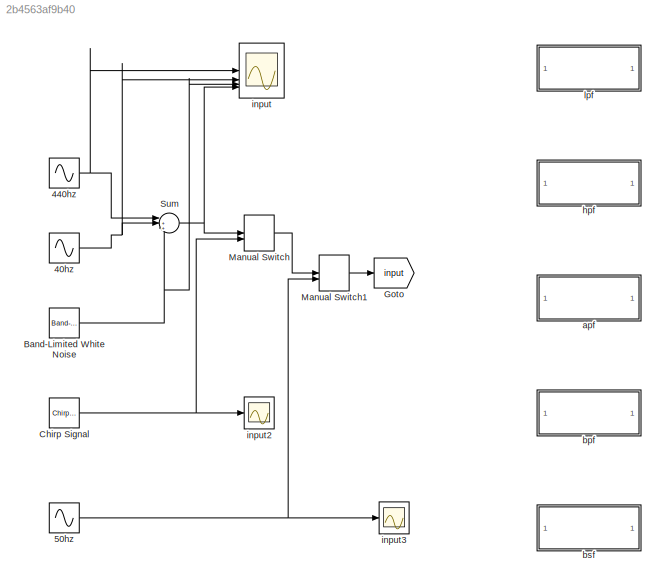
MODEL slx_2b4563af9b40
KIND model
CONFIG AbsTol = auto
CONFIG EnableMultiTasking = off
CONFIG FixedStep = auto
CONFIG MaxStep = auto
CONFIG MinStep = auto
CONFIG RelTol = 1e-3
CONFIG SampleTimeConstraint = Unconstrained
CONFIG SolverName = VariableStepAuto
CONFIG StartTime = 0.0
CONFIG StopTime = 0.2
BLOCK [Sin] 40hz
  Frequency = 2*pi*40
  SampleTime = 0
BLOCK [Sin] 440hz
  Frequency = 2*pi*440
  SampleTime = 0
BLOCK [Sin] 50hz
  Frequency = 2*pi*100
  SampleTime = 0
BLOCK [Reference] Band-Limited White Noise  REF=simulink/Sources/Band-Limited
White Noise
  SourceBlock = simulink/Sources/Band-Limited\nWhite Noise
  SourceType = Band-Limited White Noise.
BLOCK [Reference] Chirp Signal  REF=simulink/Sources/Chirp Signal
  SourceBlock = simulink/Sources/Chirp Signal
  SourceType = chirp
BLOCK [Goto] Goto
  GotoTag = input
  TagVisibility = global
BLOCK [ManualSwitch] Manual Switch
  CurrentSetting = 0
BLOCK [ManualSwitch] Manual Switch1
  CurrentSetting = 0
BLOCK [Sum] Sum
  Inputs = |+++
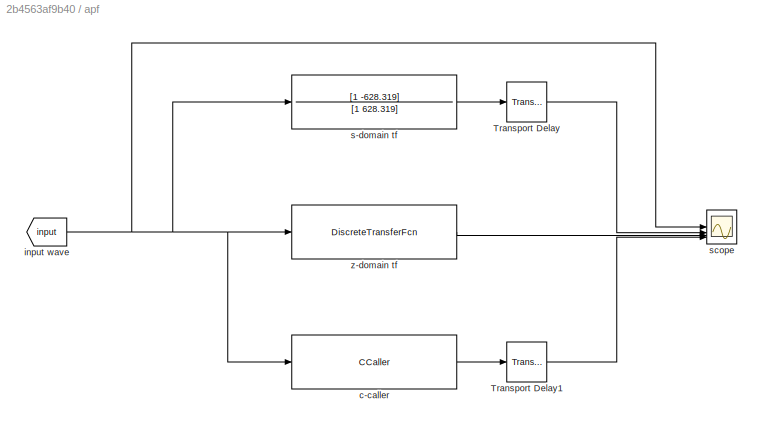
BLOCK [SubSystem] apf
BLOCK [TransportDelay] apf/Transport Delay
  DelayTime = 0.002
BLOCK [TransportDelay] apf/Transport Delay1
  DelayTime = 0.004
BLOCK [CCaller] apf/c-caller
  FunctionName = apf_step
  PortSpecificationStruct = %)30     .    N ,   8    (     @         %    "     (    !     0         %  0 "0    $    _    07)G3F%M90  4&]R=$YA;64 4V-O<&4     26YD97@     5'EP90      4VEZ90      27-';&]B86P   X    P    !@    @    $          4    (     0    ,    !         !   P!O=70 #@   #     &    "     0         !0    @    !     P    $         $  # &]U=  .    .     8    (    !          %    "     $    &     0         0    !@...<+882ch>  <repeated x5 — deduplicated; at blocks: c-caller>
  SampleTime = 0.0001
BLOCK [From] apf/input wave
  GotoTag = input
  TagVisibility = global
BLOCK [TransferFcn] apf/s-domain tf
  Denominator = [1 628.319]
  Numerator = [1 -628.319]
BLOCK [Scope] apf/scope
  ActiveDisplayYMaximum = 1.9867147971946055
  ActiveDisplayYMinimum = -3.2010108129554125
  DataLoggingVariableName = ScopeData3
  Floating = off
  GraphicalSettings = {"Style":{"BackgroundColor":[0.12941176470588237,0.12941176470588237,0.12941176470588237],"AxesColor":[0.07058823529411765,0.07058823529411765,0.07058823529411765],"LabelsColor":[0.8509803921568627,0.8509803921568627,0.8509803921568627],"PreserveColors":false,"Visible":[true,true,true,true],"LineStyle":["-","-","-","-"],"LineWidth":[1.5,1.5,1.5,1.5],"BarWidth":[0.9,0.9,0.9,0.9],"LineColor":["auto"...<+2370ch>  <repeated x4 — deduplicated; at blocks: scope>
  MultipleDisplayCache = [{"MaxYLimMag":1.25,"MaxYLimReal":1.9867147971946055,"MinYLimMag":0,"MinYLimReal":-3.2010108129554125,"PlotAsMagnitudePhase":false,"ShowGrid":true,"ShowLegend":true,"Title":"%<SignalLabel>","YLabel":""}]
  NumInputPorts = 4
  ScopeFrameLocation = window
  ShowLegend = on
  WasSavedAsWebScope = on
  WindowPosition = [11.000000,30.000000,1920.000000,1016.000000,]
BLOCK [DiscreteTransferFcn] apf/z-domain tf
  CloseFcn = dspblkCoreblockFVToolHelper(gcbh,'close');
  CopyFcn = dspblkCoreblockFVToolHelper(gcbh,'copy');
  DeleteFcn = dspblkCoreblockFVToolHelper(gcbh,'close');
  Denominator = [1 -0.93908194]
  InputPortMap = u0
  LoadFcn = dspblkCoreblockFVToolHelper(gcbh,'load');
  ModelCloseFcn = dspblkCoreblockFVToolHelper(gcbh,'close');
  Numerator = [0.93908194 -1]
  PostSaveFcn = dspblkCoreblockFVToolHelper(gcbh,'postsave');
  PreSaveFcn = dspblkCoreblockFVToolHelper(gcbh,'presave');
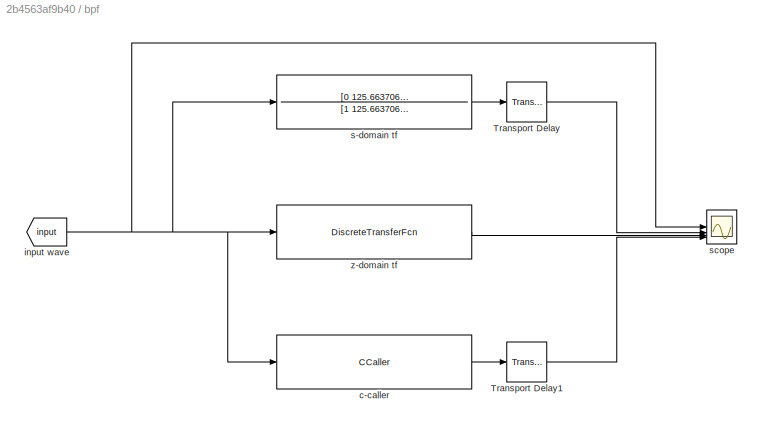
BLOCK [SubSystem] bpf
BLOCK [TransportDelay] bpf/Transport Delay
  DelayTime = 0.002
BLOCK [TransportDelay] bpf/Transport Delay1
  DelayTime = 0.004
BLOCK [CCaller] bpf/c-caller
  FunctionName = bpf_step
  SampleTime = 0.0001
BLOCK [From] bpf/input wave
  GotoTag = input
  TagVisibility = global
BLOCK [TransferFcn] bpf/s-domain tf
  Denominator = [1 125.6637061 394784.1760]
  Numerator = [0 125.6637061 0]
BLOCK [Scope] bpf/scope
  ActiveDisplayYMaximum = 1.9867147971946055
  ActiveDisplayYMinimum = -3.2010108129554125
  DataLoggingVariableName = ScopeData3
  Floating = off
  MultipleDisplayCache = [{"MaxYLimMag":1.25,"MaxYLimReal":1.9867147971946055,"MinYLimMag":0,"MinYLimReal":-3.2010108129554125,"PlotAsMagnitudePhase":false,"ShowGrid":true,"ShowLegend":true,"Title":"%<SignalLabel>","YLabel":""}]
  NumInputPorts = 4
  ScopeFrameLocation = window
  ShowLegend = on
  WasSavedAsWebScope = on
  WindowPosition = [11.000000,30.000000,1920.000000,1016.000000,]
BLOCK [DiscreteTransferFcn] bpf/z-domain tf
  CloseFcn = dspblkCoreblockFVToolHelper(gcbh,'close');
  CopyFcn = dspblkCoreblockFVToolHelper(gcbh,'copy');
  DeleteFcn = dspblkCoreblockFVToolHelper(gcbh,'close');
  Denominator = [1 -1.98360498 0.98752433]
  InputPortMap = u0
  LoadFcn = dspblkCoreblockFVToolHelper(gcbh,'load');
  ModelCloseFcn = dspblkCoreblockFVToolHelper(gcbh,'close');
  Numerator = [0.00623784 0 -0.00623784]
  PostSaveFcn = dspblkCoreblockFVToolHelper(gcbh,'postsave');
  PreSaveFcn = dspblkCoreblockFVToolHelper(gcbh,'presave');
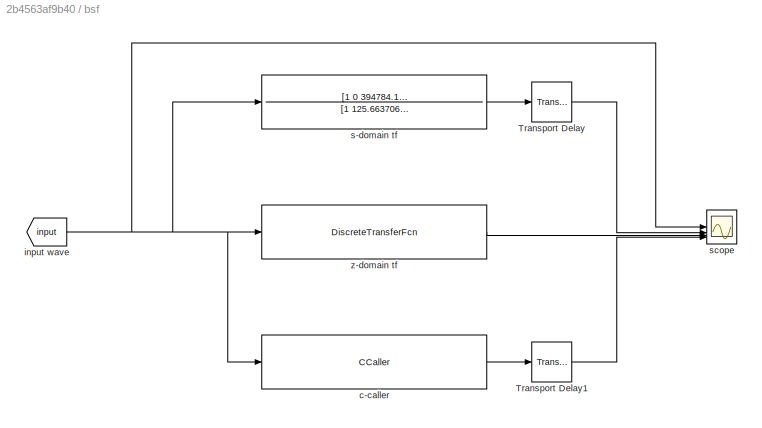
BLOCK [SubSystem] bsf
BLOCK [TransportDelay] bsf/Transport Delay
  DelayTime = 0.002
BLOCK [TransportDelay] bsf/Transport Delay1
  DelayTime = 0.004
BLOCK [CCaller] bsf/c-caller
  FunctionName = bsf_step
  SampleTime = 0.0001
BLOCK [From] bsf/input wave
  GotoTag = input
  TagVisibility = global
BLOCK [TransferFcn] bsf/s-domain tf
  Denominator = [1 125.6637061 394784.1760]
  Numerator = [1 0 394784.1760]
BLOCK [Scope] bsf/scope
  ActiveDisplayYMaximum = 1.9867147971946055
  ActiveDisplayYMinimum = -3.2010108129554125
  DataLoggingVariableName = ScopeData3
  Floating = off
  GraphicalSettings = {"Style":{"BackgroundColor":[0.12941176470588237,0.12941176470588237,0.12941176470588237],"AxesColor":[0.07058823529411765,0.07058823529411765,0.07058823529411765],"LabelsColor":[0.8509803921568627,0.8509803921568627,0.8509803921568627],"PreserveColors":false,"Visible":[true,true,true,true],"LineStyle":["-","-","-","-"],"LineWidth":[1.5,1.5,1.5,1.5],"BarWidth":[0.9,0.9,0.9,0.9],"LineColor":["auto"...<+2386ch>
  MultipleDisplayCache = [{"MaxYLimMag":1.25,"MaxYLimReal":1.9867147971946055,"MinYLimMag":0,"MinYLimReal":-3.2010108129554125,"PlotAsMagnitudePhase":false,"ShowGrid":true,"ShowLegend":true,"Title":"%<SignalLabel>","YLabel":"amplitud"}]
  NumInputPorts = 4
  ScopeFrameLocation = window
  ShowLegend = on
  ShowTimeAxisLabel = on
  WasSavedAsWebScope = on
  WindowPosition = [11.000000,30.000000,1920.000000,1016.000000,]
  YLabel = amplitud
BLOCK [DiscreteTransferFcn] bsf/z-domain tf
  CloseFcn = dspblkCoreblockFVToolHelper(gcbh,'close');
  CopyFcn = dspblkCoreblockFVToolHelper(gcbh,'copy');
  DeleteFcn = dspblkCoreblockFVToolHelper(gcbh,'close');
  Denominator = [1 -1.98360498 0.98752433]
  InputPortMap = u0
  LoadFcn = dspblkCoreblockFVToolHelper(gcbh,'load');
  ModelCloseFcn = dspblkCoreblockFVToolHelper(gcbh,'close');
  Numerator = [0.99376216 -1.98360498 0.99376216]
  PostSaveFcn = dspblkCoreblockFVToolHelper(gcbh,'postsave');
  PreSaveFcn = dspblkCoreblockFVToolHelper(gcbh,'presave');
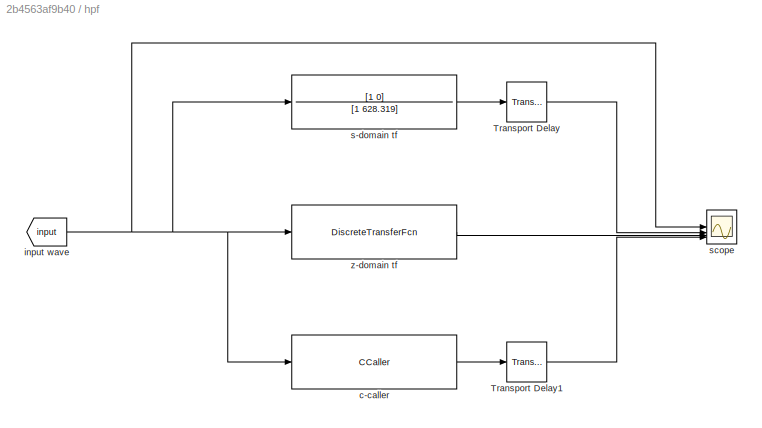
BLOCK [SubSystem] hpf
BLOCK [TransportDelay] hpf/Transport Delay
  DelayTime = 0.002
BLOCK [TransportDelay] hpf/Transport Delay1
  DelayTime = 0.004
BLOCK [CCaller] hpf/c-caller
  FunctionName = hpf_step
  SampleTime = 0.0001
BLOCK [From] hpf/input wave
  GotoTag = input
  TagVisibility = global
BLOCK [TransferFcn] hpf/s-domain tf
  Denominator = [1 628.319]
  Numerator = [1 0]
BLOCK [Scope] hpf/scope
  ActiveDisplayYMaximum = 1.9981075354731477
  ActiveDisplayYMinimum = -3.2474138199887865
  DataLoggingVariableName = ScopeData3
  Floating = off
  MultipleDisplayCache = [{"MaxYLimMag":1.25,"MaxYLimReal":1.9981075354731477,"MinYLimMag":0,"MinYLimReal":-3.2474138199887865,"PlotAsMagnitudePhase":false,"ShowGrid":true,"ShowLegend":true,"Title":"%<SignalLabel>","YLabel":""}]
  NumInputPorts = 4
  ScopeFrameLocation = window
  ShowLegend = on
  WasSavedAsWebScope = on
  WindowPosition = [11.000000,30.000000,1920.000000,1016.000000,]
BLOCK [DiscreteTransferFcn] hpf/z-domain tf
  CloseFcn = dspblkCoreblockFVToolHelper(gcbh,'close');
  CopyFcn = dspblkCoreblockFVToolHelper(gcbh,'copy');
  DeleteFcn = dspblkCoreblockFVToolHelper(gcbh,'close');
  Denominator = [1 -0.93908194]
  InputPortMap = u0
  LoadFcn = dspblkCoreblockFVToolHelper(gcbh,'load');
  ModelCloseFcn = dspblkCoreblockFVToolHelper(gcbh,'close');
  Numerator = [0.96954097 -0.96954097]
  PostSaveFcn = dspblkCoreblockFVToolHelper(gcbh,'postsave');
  PreSaveFcn = dspblkCoreblockFVToolHelper(gcbh,'presave');
BLOCK [Scope] input
  Floating = off
  GraphicalSettings = {"Style":{"BackgroundColor":[0.12941176470588237,0.12941176470588237,0.12941176470588237],"AxesColor":[0.07058823529411765,0.07058823529411765,0.07058823529411765],"LabelsColor":[0.8509803921568627,0.8509803921568627,0.8509803921568627],"PreserveColors":false,"Visible":[true,true,true,true,true,true,true],"LineStyle":["-","-","-","-","-","-","-"],"LineWidth":[1.5,1.5,1.5,1.5,1.5,1.5,1.5],"BarWidth...<+2485ch>
  NumInputPorts = 4
  ScopeFrameLocation = window
  WasSavedAsWebScope = on
  WindowPosition = [680.000000,441.000000,560.000000,420.000000,]
BLOCK [Scope] input2
  DataLoggingVariableName = ScopeData1
  Floating = off
  GraphicalSettings = {"GraphicalSettings":{"LegacySettings":true,"Style":{"Style":{"PlotType":"Auto"}}}}
  NumInputPorts = 1
  WasSavedAsWebScope = on
BLOCK [Scope] input3
  DataLoggingVariableName = ScopeData2
  Floating = off
  GraphicalSettings = {"GraphicalSettings":{"LegacySettings":true,"Style":{"Style":{"PlotType":"Auto"}}}}
  NumInputPorts = 1
  WasSavedAsWebScope = on
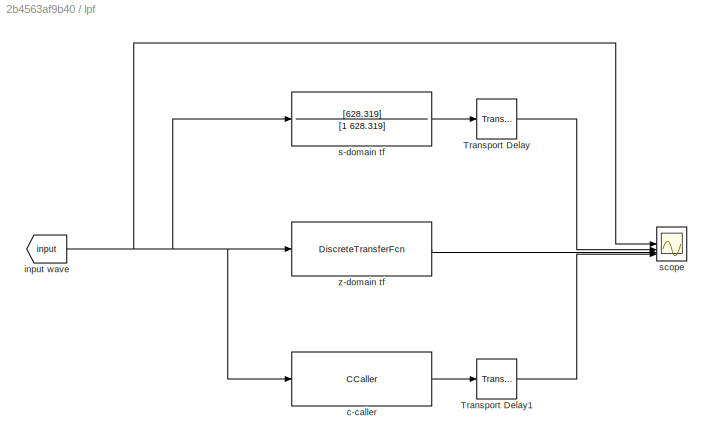
BLOCK [SubSystem] lpf
BLOCK [TransportDelay] lpf/Transport Delay
  DelayTime = 0.002
BLOCK [TransportDelay] lpf/Transport Delay1
  DelayTime = 0.004
BLOCK [CCaller] lpf/c-caller
  FunctionName = lpf_step
  SampleTime = 0.0001
BLOCK [From] lpf/input wave
  GotoTag = input
  TagVisibility = global
BLOCK [TransferFcn] lpf/s-domain tf
  Denominator = [1 628.319]
  Numerator = [628.319]
BLOCK [Scope] lpf/scope
  ActiveDisplayYMaximum = 1.1998156172727978
  ActiveDisplayYMinimum = -1.0370380681704505
  DataLoggingVariableName = ScopeData3
  Floating = off
  MultipleDisplayCache = [{"MaxYLimMag":1.25,"MaxYLimReal":1.1998156172727978,"MinYLimMag":0,"MinYLimReal":-1.0370380681704505,"PlotAsMagnitudePhase":false,"ShowGrid":true,"ShowLegend":true,"Title":"%<SignalLabel>","YLabel":""}]
  NumInputPorts = 4
  ScopeFrameLocation = window
  ShowLegend = on
  WasSavedAsWebScope = on
  WindowPosition = [11.000000,30.000000,1920.000000,1016.000000,]
BLOCK [DiscreteTransferFcn] lpf/z-domain tf
  CloseFcn = dspblkCoreblockFVToolHelper(gcbh,'close');
  CopyFcn = dspblkCoreblockFVToolHelper(gcbh,'copy');
  DeleteFcn = dspblkCoreblockFVToolHelper(gcbh,'close');
  Denominator = [1 -0.9390819]
  InputPortMap = u0
  LoadFcn = dspblkCoreblockFVToolHelper(gcbh,'load');
  ModelCloseFcn = dspblkCoreblockFVToolHelper(gcbh,'close');
  Numerator = [0.0304590 0.0304590]
  PostSaveFcn = dspblkCoreblockFVToolHelper(gcbh,'postsave');
  PreSaveFcn = dspblkCoreblockFVToolHelper(gcbh,'presave');
NET 40hz:1 -> Sum:2, input:2
NET 440hz:1 -> Sum:1, input:1
NET 50hz:1 -> Manual Switch1:2, input3:1
NET Band-Limited White Noise:1 -> Sum:3, input:3
NET Chirp Signal:1 -> Manual Switch:2, input2:1
LINE Manual Switch1:1 -> Goto:1
LINE Manual Switch:1 -> Manual Switch1:1
NET Sum:1 -> Manual Switch:1, input:4
LINE apf/Transport Delay1:1 -> apf/scope:4
LINE apf/Transport Delay:1 -> apf/scope:2
LINE apf/c-caller:1 -> apf/Transport Delay1:1
NET apf/input wave:1 -> apf/c-caller:1, apf/s-domain tf:1, apf/scope:1, apf/z-domain tf:1
LINE apf/s-domain tf:1 -> apf/Transport Delay:1
LINE apf/z-domain tf:1 -> apf/scope:3
LINE bpf/Transport Delay1:1 -> bpf/scope:4
LINE bpf/Transport Delay:1 -> bpf/scope:2
LINE bpf/c-caller:1 -> bpf/Transport Delay1:1
NET bpf/input wave:1 -> bpf/c-caller:1, bpf/s-domain tf:1, bpf/scope:1, bpf/z-domain tf:1
LINE bpf/s-domain tf:1 -> bpf/Transport Delay:1
LINE bpf/z-domain tf:1 -> bpf/scope:3
LINE bsf/Transport Delay1:1 -> bsf/scope:4
LINE bsf/Transport Delay:1 -> bsf/scope:2
LINE bsf/c-caller:1 -> bsf/Transport Delay1:1
NET bsf/input wave:1 -> bsf/c-caller:1, bsf/s-domain tf:1, bsf/scope:1, bsf/z-domain tf:1
LINE bsf/s-domain tf:1 -> bsf/Transport Delay:1
LINE bsf/z-domain tf:1 -> bsf/scope:3
LINE hpf/Transport Delay1:1 -> hpf/scope:4
LINE hpf/Transport Delay:1 -> hpf/scope:2
LINE hpf/c-caller:1 -> hpf/Transport Delay1:1
NET hpf/input wave:1 -> hpf/c-caller:1, hpf/s-domain tf:1, hpf/scope:1, hpf/z-domain tf:1
LINE hpf/s-domain tf:1 -> hpf/Transport Delay:1
LINE hpf/z-domain tf:1 -> hpf/scope:3
LINE lpf/Transport Delay1:1 -> lpf/scope:4
LINE lpf/Transport Delay:1 -> lpf/scope:2
LINE lpf/c-caller:1 -> lpf/Transport Delay1:1
NET lpf/input wave:1 -> lpf/c-caller:1, lpf/s-domain tf:1, lpf/scope:1, lpf/z-domain tf:1
LINE lpf/s-domain tf:1 -> lpf/Transport Delay:1
LINE lpf/z-domain tf:1 -> lpf/scope:3
note: NET lines group one-source signal fan-out (src -> all destinations, sorted); 1:1 wires keep LINE
